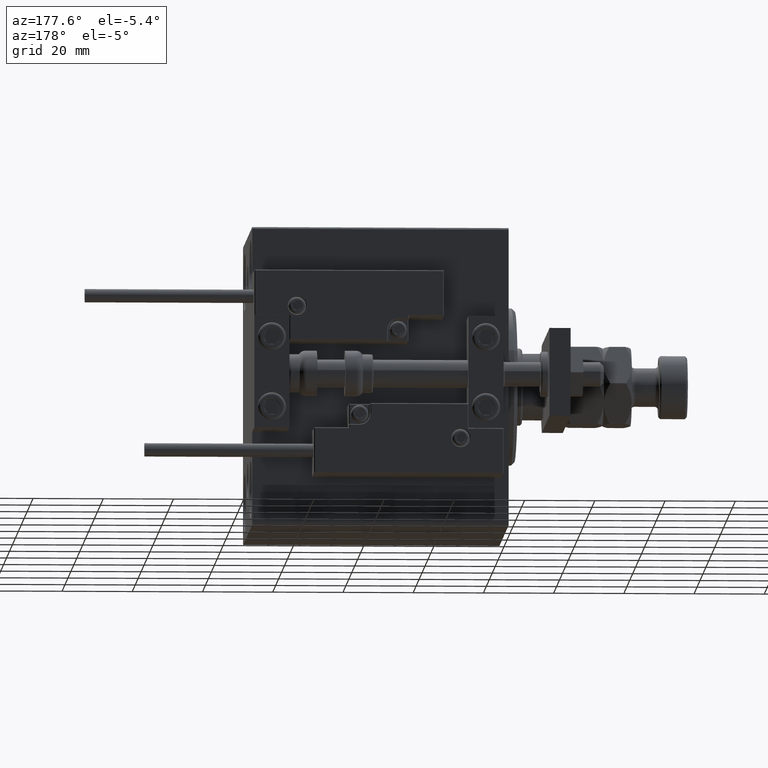
[diagram: clean part render]
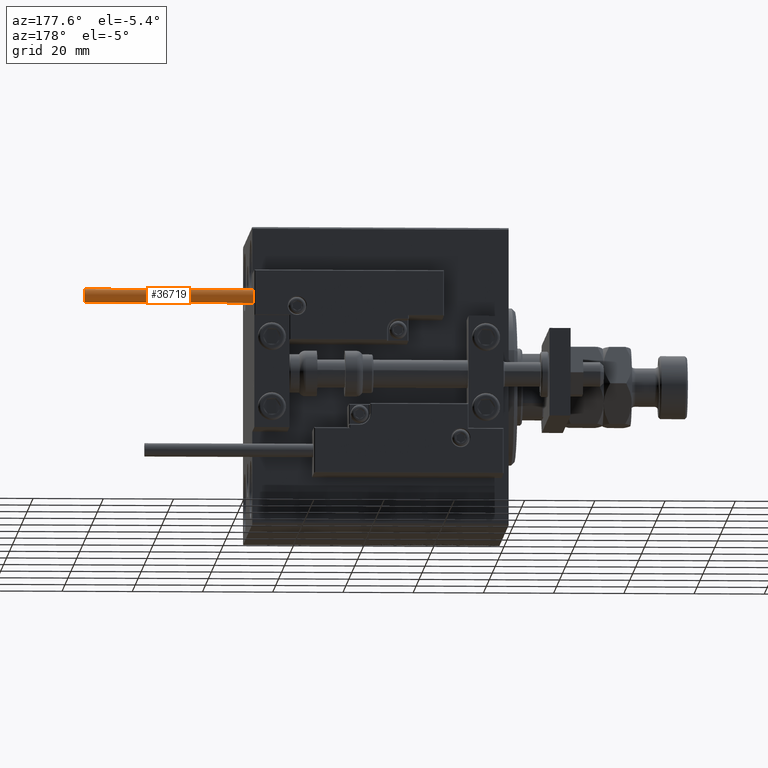
[diagram: same view with one face highlighted and labeled with its STEP entity id]
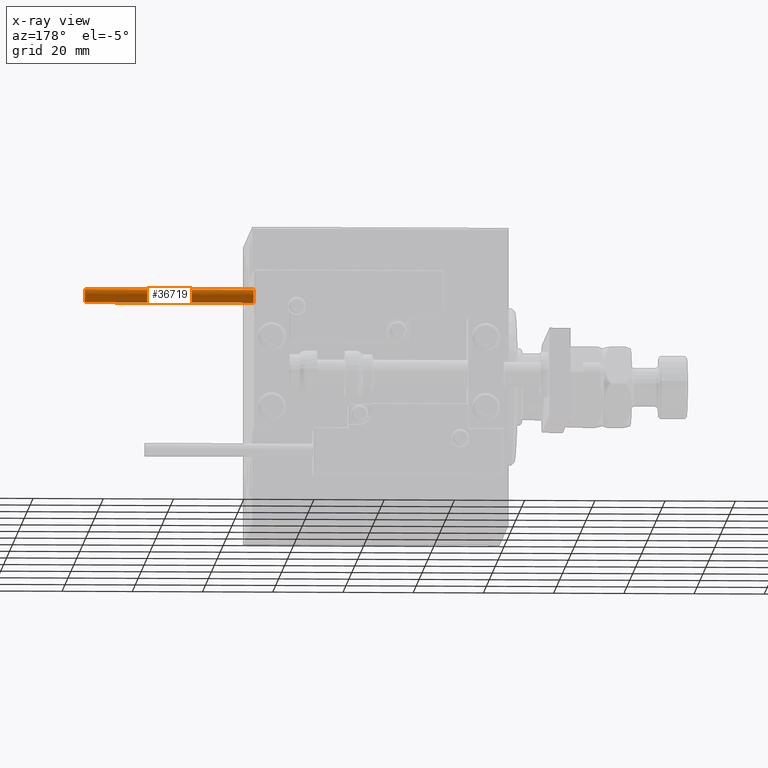
[diagram: x-ray of the same camera — body ghosted, the highlighted face saturated]
A machine part, auxiliary view. The second image highlights one B-rep face of the part: STEP entity #36719.
The next image is the same camera in x-ray: the body ghosted, the highlighted face saturated — about 0% of this face is hidden behind the body in this view.
In plain terms, the highlighted cylindrical surface (edge-blend (fillet) strip) has radius 1.9 mm, axis along (-1, -0, 0).
Its self-contained STEP definition (entity closure, byte-faithful):
#172 = CYLINDRICAL_SURFACE ( 'NONE', #22427, 1.899999999999999467 ) ;
#1898 = CARTESIAN_POINT ( 'NONE',  ( 1.899999999999999467, 2.326828918379970872E-16, 48.00000000000000000 ) ) ;
#2413 = AXIS2_PLACEMENT_3D ( 'NONE', #4970, #36924, #16985 ) ;
#2483 = DIRECTION ( 'NONE',  ( -0.000000000000000000, -0.000000000000000000, -1.000000000000000000 ) ) ;
#3200 = VERTEX_POINT ( 'NONE', #51712 ) ;
#4970 = CARTESIAN_POINT ( 'NONE',  ( 0.000000000000000000, 0.000000000000000000, 48.00000000000000000 ) ) ;
#5897 = CARTESIAN_POINT ( 'NONE',  ( -1.899999999999999467, 0.000000000000000000, 48.00000000000000000 ) ) ;
#11169 = ORIENTED_EDGE ( 'NONE', *, *, #33833, .F. ) ;
#13351 = AXIS2_PLACEMENT_3D ( 'NONE', #24035, #47854, #35600 ) ;
#15622 = VECTOR ( 'NONE', #2483, 1000.000000000000000 ) ;
#16500 = VERTEX_POINT ( 'NONE', #37904 ) ;
#16985 = DIRECTION ( 'NONE',  ( 1.000000000000000000, 0.000000000000000000, 0.000000000000000000 ) ) ;
#18885 = CARTESIAN_POINT ( 'NONE',  ( -1.899999999999999467, 0.000000000000000000, 0.000000000000000000 ) ) ;
#19815 = FACE_OUTER_BOUND ( 'NONE', #41947, .T. ) ;
#20325 = DIRECTION ( 'NONE',  ( -1.000000000000000000, 0.000000000000000000, 0.000000000000000000 ) ) ;
#22427 = AXIS2_PLACEMENT_3D ( 'NONE', #35805, #44679, #20325 ) ;
#24035 = CARTESIAN_POINT ( 'NONE',  ( 0.000000000000000000, 0.000000000000000000, 0.000000000000000000 ) ) ;
#24475 = CARTESIAN_POINT ( 'NONE',  ( 1.899999999999999467, 2.326828918379970872E-16, 48.00000000000000000 ) ) ;
#24540 = VERTEX_POINT ( 'NONE', #18885 ) ;
#25146 = ORIENTED_EDGE ( 'NONE', *, *, #38459, .F. ) ;
#30003 = CIRCLE ( 'NONE', #2413, 1.899999999999999467 ) ;
#32093 = ORIENTED_EDGE ( 'NONE', *, *, #43797, .T. ) ;
#33833 = EDGE_CURVE ( 'NONE', #3200, #24540, #34681, .T. ) ;
#34681 = LINE ( 'NONE', #5897, #15622 ) ;
#35156 = VECTOR ( 'NONE', #40211, 1000.000000000000000 ) ;
#35600 = DIRECTION ( 'NONE',  ( 1.000000000000000000, 0.000000000000000000, 0.000000000000000000 ) ) ;
#35805 = CARTESIAN_POINT ( 'NONE',  ( 0.000000000000000000, 0.000000000000000000, 48.00000000000000000 ) ) ;
#35943 = CIRCLE ( 'NONE', #13351, 1.899999999999999467 ) ;
#36719 = ADVANCED_FACE ( 'NONE', ( #19815 ), #172, .T. ) ;
#36924 = DIRECTION ( 'NONE',  ( 0.000000000000000000, 0.000000000000000000, 1.000000000000000000 ) ) ;
#37904 = CARTESIAN_POINT ( 'NONE',  ( 1.899999999999999467, 2.326828918379970872E-16, 0.000000000000000000 ) ) ;
#38459 = EDGE_CURVE ( 'NONE', #42518, #3200, #30003, .T. ) ;
#39716 = ORIENTED_EDGE ( 'NONE', *, *, #41616, .T. ) ;
#40211 = DIRECTION ( 'NONE',  ( -0.000000000000000000, -0.000000000000000000, -1.000000000000000000 ) ) ;
#41616 = EDGE_CURVE ( 'NONE', #42518, #16500, #44123, .T. ) ;
#41947 = EDGE_LOOP ( 'NONE', ( #25146, #39716, #32093, #11169 ) ) ;
#42518 = VERTEX_POINT ( 'NONE', #1898 ) ;
#43797 = EDGE_CURVE ( 'NONE', #16500, #24540, #35943, .T. ) ;
#44123 = LINE ( 'NONE', #24475, #35156 ) ;
#44679 = DIRECTION ( 'NONE',  ( -0.000000000000000000, -0.000000000000000000, -1.000000000000000000 ) ) ;
#47854 = DIRECTION ( 'NONE',  ( 0.000000000000000000, 0.000000000000000000, 1.000000000000000000 ) ) ;
#51712 = CARTESIAN_POINT ( 'NONE',  ( -1.899999999999999467, 0.000000000000000000, 48.00000000000000000 ) ) ;